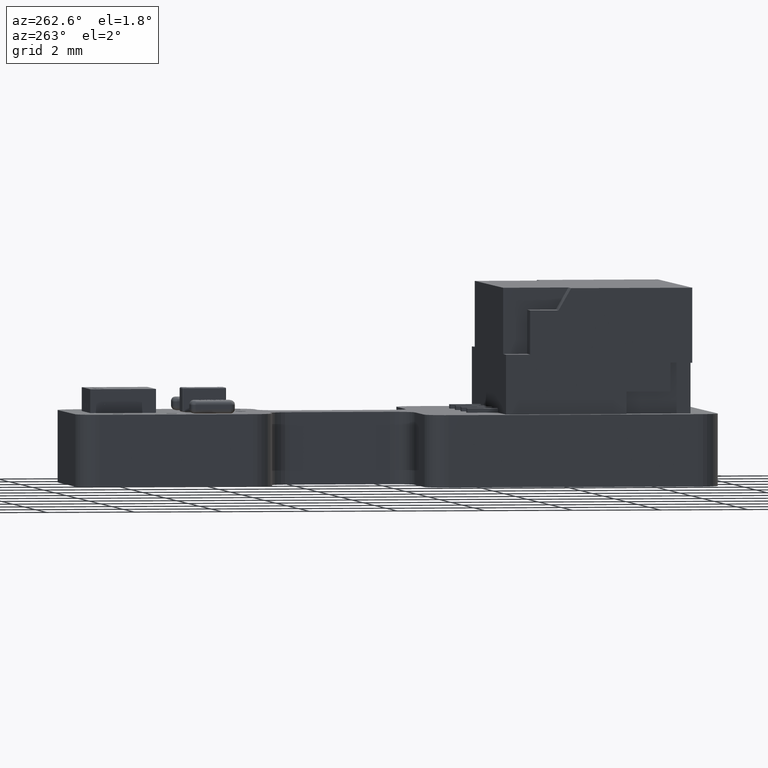
[diagram: clean part render]
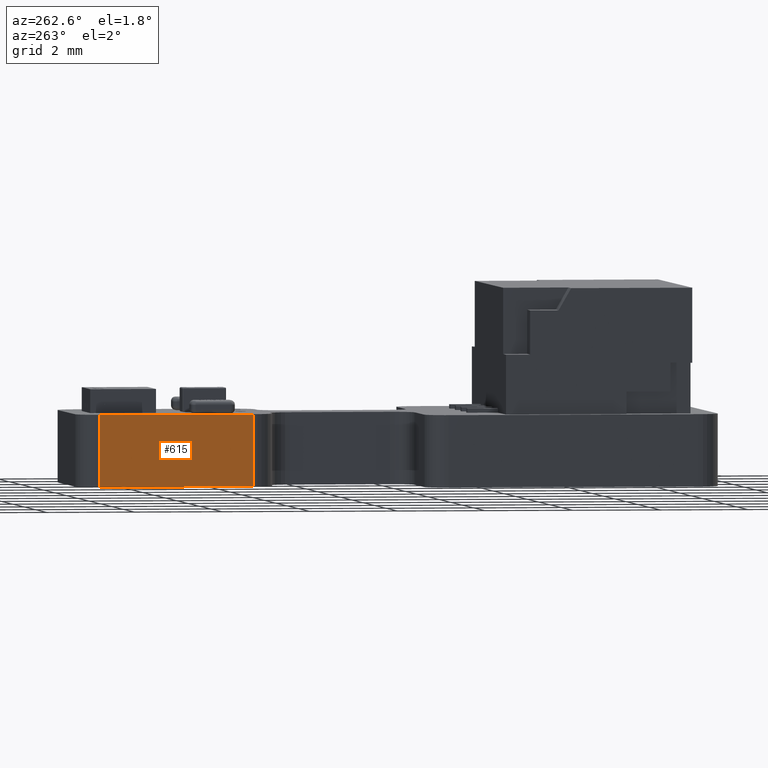
[diagram: same view with one face highlighted and labeled with its STEP entity id]
A machine part, auxiliary view. The second image highlights one B-rep face of the part: STEP entity #615.
In plain terms, the highlighted planar face has unit normal (1, 0, 0).
Its self-contained STEP definition (entity closure, byte-faithful):
#559 = VERTEX_POINT('',#560);
#560 = CARTESIAN_POINT('',(0.E+000,-0.5,0.82));
#566 = EDGE_CURVE('',#567,#559,#569,.T.);
#567 = VERTEX_POINT('',#568);
#568 = CARTESIAN_POINT('',(0.E+000,-0.5,-0.82));
#569 = LINE('',#570,#571);
#570 = CARTESIAN_POINT('',(0.E+000,-0.5,-0.82));
#571 = VECTOR('',#572,1.);
#572 = DIRECTION('',(0.E+000,0.E+000,1.));
#615 = ADVANCED_FACE('',(#616),#641,.F.);
#616 = FACE_BOUND('',#617,.F.);
#617 = EDGE_LOOP('',(#618,#619,#627,#635));
#618 = ORIENTED_EDGE('',*,*,#566,.T.);
#619 = ORIENTED_EDGE('',*,*,#620,.T.);
#620 = EDGE_CURVE('',#559,#621,#623,.T.);
#621 = VERTEX_POINT('',#622);
#622 = CARTESIAN_POINT('',(0.E+000,-4.,0.82));
#623 = LINE('',#624,#625);
#624 = CARTESIAN_POINT('',(0.E+000,-0.5,0.82));
#625 = VECTOR('',#626,1.);
#626 = DIRECTION('',(0.E+000,-1.,0.E+000));
#627 = ORIENTED_EDGE('',*,*,#628,.F.);
#628 = EDGE_CURVE('',#629,#621,#631,.T.);
#629 = VERTEX_POINT('',#630);
#630 = CARTESIAN_POINT('',(0.E+000,-4.,-0.82));
#631 = LINE('',#632,#633);
#632 = CARTESIAN_POINT('',(0.E+000,-4.,-0.82));
#633 = VECTOR('',#634,1.);
#634 = DIRECTION('',(0.E+000,0.E+000,1.));
#635 = ORIENTED_EDGE('',*,*,#636,.F.);
#636 = EDGE_CURVE('',#567,#629,#637,.T.);
#637 = LINE('',#638,#639);
#638 = CARTESIAN_POINT('',(0.E+000,-0.5,-0.82));
#639 = VECTOR('',#640,1.);
#640 = DIRECTION('',(0.E+000,-1.,0.E+000));
#641 = PLANE('',#642);
#642 = AXIS2_PLACEMENT_3D('',#643,#644,#645);
#643 = CARTESIAN_POINT('',(0.E+000,-0.5,-0.82));
#644 = DIRECTION('',(1.,0.E+000,-0.E+000));
#645 = DIRECTION('',(0.E+000,-1.,0.E+000));